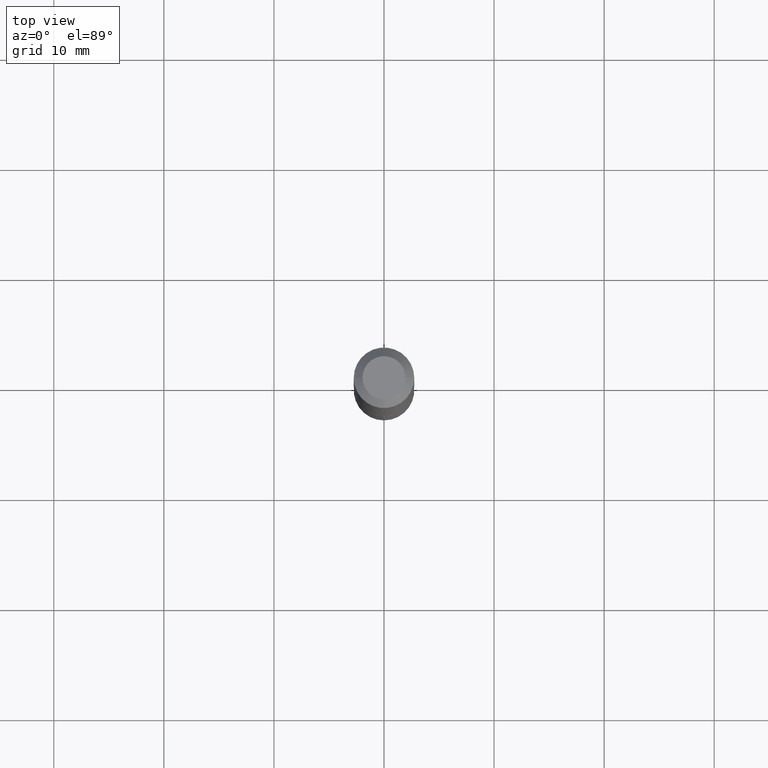
[diagram: clean part render]
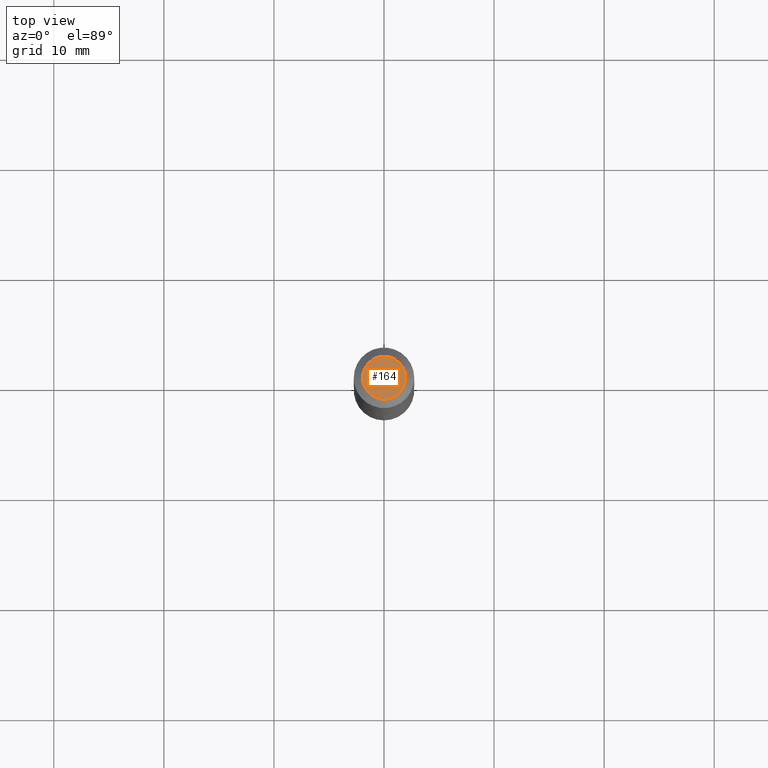
[diagram: same view with one face highlighted and labeled with its STEP entity id]
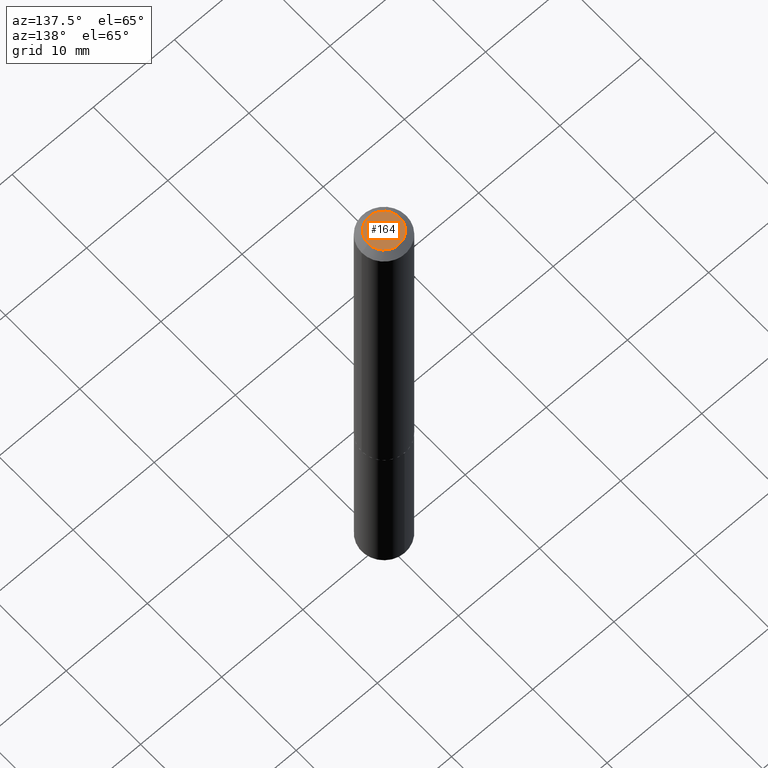
[diagram: same view with one face highlighted and labeled with its STEP entity id]
A machine part, top view. The second image highlights one B-rep face of the part: STEP entity #164.
A second angle (auxiliary view) of the same face is appended — the face is thin or edge-on in the first view.
In plain terms, the highlighted planar face has unit normal (0, -0, -1).
Its self-contained STEP definition (entity closure, byte-faithful):
#31 = ORIENTED_EDGE ( 'NONE', *, *, #383, .T. ) ;
#35 = DIRECTION ( 'NONE',  ( -2.445468806185136597E-29, 3.491481338843145583E-15, 1.000000000000000000 ) ) ;
#40 = DIRECTION ( 'NONE',  ( -2.445468806185136597E-29, 3.491481338843145583E-15, 1.000000000000000000 ) ) ;
#43 = AXIS2_PLACEMENT_3D ( 'NONE', #382, #86, #333 ) ;
#46 = CARTESIAN_POINT ( 'NONE',  ( 0.07699999999999998512, -6.900080229630125461E-16, 1.200153863168698194E-18 ) ) ;
#75 = ORIENTED_EDGE ( 'NONE', *, *, #89, .T. ) ;
#82 = FACE_OUTER_BOUND ( 'NONE', #114, .T. ) ;
#86 = DIRECTION ( 'NONE',  ( 2.438088387897960049E-29, -3.491481338843145188E-15, -1.000000000000000000 ) ) ;
#89 = EDGE_CURVE ( 'NONE', #233, #239, #276, .T. ) ;
#114 = EDGE_LOOP ( 'NONE', ( #31, #75 ) ) ;
#164 = ADVANCED_FACE ( 'NONE', ( #82 ), #389, .F. ) ;
#189 = CARTESIAN_POINT ( 'NONE',  ( -2.934938834991140479E-47, 4.190314816979034009E-33, 1.200153863164406066E-18 ) ) ;
#233 = VERTEX_POINT ( 'NONE', #46 ) ;
#239 = VERTEX_POINT ( 'NONE', #370 ) ;
#245 = CARTESIAN_POINT ( 'NONE',  ( -2.934938834991140479E-47, 4.190314816979034009E-33, 1.200153863164406066E-18 ) ) ;
#276 = CIRCLE ( 'NONE', #349, 0.07699999999999998512 ) ;
#287 = CIRCLE ( 'NONE', #377, 0.07699999999999998512 ) ;
#302 = DIRECTION ( 'NONE',  ( 1.000000000000000000, -6.982962677686266711E-15, 4.876247235587762773E-29 ) ) ;
#333 = DIRECTION ( 'NONE',  ( -1.000000000000000000, 6.982962677686265922E-15, -4.876176775795935793E-29 ) ) ;
#349 = AXIS2_PLACEMENT_3D ( 'NONE', #245, #35, #302 ) ;
#370 = CARTESIAN_POINT ( 'NONE',  ( -0.07699999999999998512, 5.922425221012658919E-16, 1.200153863160455214E-18 ) ) ;
#377 = AXIS2_PLACEMENT_3D ( 'NONE', #189, #40, #385 ) ;
#382 = CARTESIAN_POINT ( 'NONE',  ( -1.467469417495570240E-47, 2.095157408489517005E-33, 6.000769315822030332E-19 ) ) ;
#383 = EDGE_CURVE ( 'NONE', #239, #233, #287, .T. ) ;
#385 = DIRECTION ( 'NONE',  ( 1.000000000000000000, -6.982962677686266711E-15, 4.876247235587762773E-29 ) ) ;
#389 = PLANE ( 'NONE',  #43 ) ;